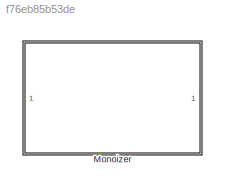
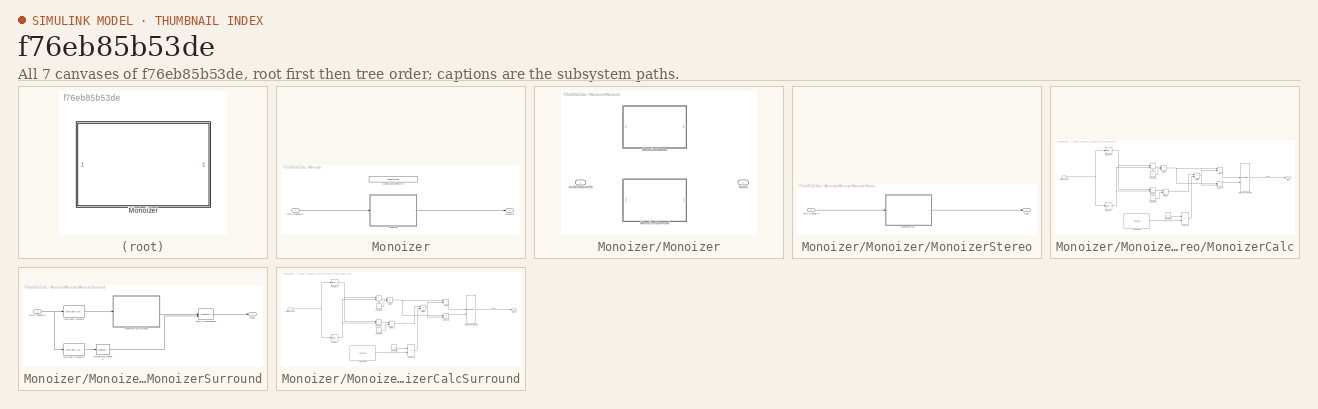
[diagram: thumbnail index - all 7 canvases of the model, root first then tree order]
MODEL slx_f76eb85b53de
KIND library
CONFIG AbsTol = auto
CONFIG EnableMultiTasking = off
CONFIG FixedStep = auto
CONFIG MaxStep = auto
CONFIG MinStep = auto
CONFIG RelTol = 1e-3
CONFIG SampleTimeConstraint = Unconstrained
CONFIG SolverName = VariableStepAuto
CONFIG StartTime = 0.0
CONFIG StopTime = 10.0
BLOCK [SubSystem] Monoizer
BLOCK [Reference] Monoizer/HandyConfigTextFile  REF=HandyTextFile/HandyTextFile
  SourceBlock = HandyTextFile/HandyTextFile
  SourceProductName = Bose Talaria
  SourceType = Talaria Handy Text File
BLOCK [SubSystem] Monoizer/Monoizer
  Variant = on
  VariantControl = Choice
BLOCK [SubSystem] Monoizer/Monoizer/MonoizerStereo
  VariantControl = Config.NumChannels == 2
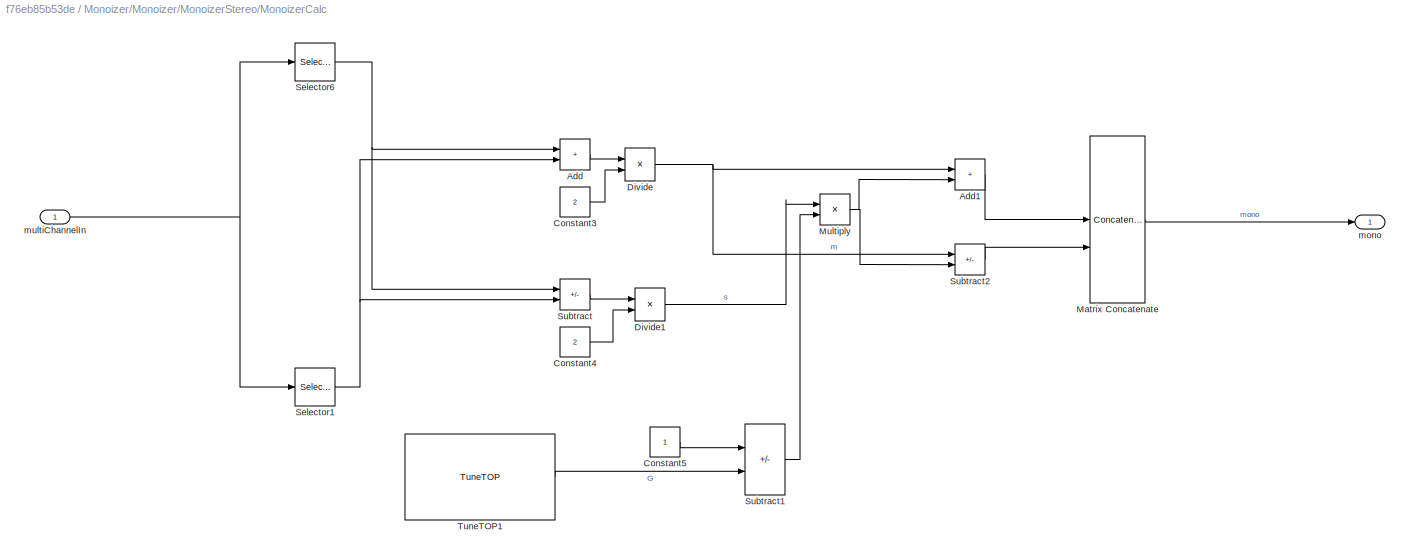
BLOCK [SubSystem] Monoizer/Monoizer/MonoizerStereo/MonoizerCalc
BLOCK [Sum] Monoizer/Monoizer/MonoizerStereo/MonoizerCalc/Add
  IconShape = rectangular
BLOCK [Sum] Monoizer/Monoizer/MonoizerStereo/MonoizerCalc/Add1
  IconShape = rectangular
BLOCK [Constant] Monoizer/Monoizer/MonoizerStereo/MonoizerCalc/Constant3
  OutDataTypeStr = single
  Value = 2
BLOCK [Constant] Monoizer/Monoizer/MonoizerStereo/MonoizerCalc/Constant4
  OutDataTypeStr = single
  Value = 2
BLOCK [Constant] Monoizer/Monoizer/MonoizerStereo/MonoizerCalc/Constant5
  OutDataTypeStr = single
BLOCK [Product] Monoizer/Monoizer/MonoizerStereo/MonoizerCalc/Divide
  Inputs = */
  RndMeth = Zero
  SaturateOnIntegerOverflow = on
BLOCK [Product] Monoizer/Monoizer/MonoizerStereo/MonoizerCalc/Divide1
  Inputs = */
  RndMeth = Zero
  SaturateOnIntegerOverflow = on
BLOCK [Concatenate] Monoizer/Monoizer/MonoizerStereo/MonoizerCalc/Matrix Concatenate
  ConcatenateDimension = 2
  Mode = Multidimensional array
BLOCK [Product] Monoizer/Monoizer/MonoizerStereo/MonoizerCalc/Multiply
BLOCK [Selector] Monoizer/Monoizer/MonoizerStereo/MonoizerCalc/Selector1
  IndexOptions = Select all,Index vector (dialog)
  Indices = 4,2
  InputPortWidth = 3
  NumberOfDimensions = 2
  OutputSizes = 1,1
BLOCK [Selector] Monoizer/Monoizer/MonoizerStereo/MonoizerCalc/Selector6
  IndexOptions = Select all,Index vector (dialog)
  Indices = 4,1
  InputPortWidth = 3
  NumberOfDimensions = 2
  OutputSizes = 1,1
BLOCK [Sum] Monoizer/Monoizer/MonoizerStereo/MonoizerCalc/Subtract
  IconShape = rectangular
  Inputs = +-
BLOCK [Sum] Monoizer/Monoizer/MonoizerStereo/MonoizerCalc/Subtract1
  IconShape = rectangular
  Inputs = +-
BLOCK [Sum] Monoizer/Monoizer/MonoizerStereo/MonoizerCalc/Subtract2
  IconShape = rectangular
  Inputs = +-
BLOCK [Reference] Monoizer/Monoizer/MonoizerStereo/MonoizerCalc/TuneTOP1  REF=TuneVar/TuneTOP
  SourceBlock = TuneVar/TuneTOP
  SourceProductName = Bose Talaria
  SourceType = Talaria Trivial Tune TOP
BLOCK [Outport] Monoizer/Monoizer/MonoizerStereo/MonoizerCalc/mono
BLOCK [Inport] Monoizer/Monoizer/MonoizerStereo/MonoizerCalc/multiChannelIn
BLOCK [Outport] Monoizer/Monoizer/MonoizerStereo/mono
BLOCK [Inport] Monoizer/Monoizer/MonoizerStereo/multiChannelIn
BLOCK [SubSystem] Monoizer/Monoizer/MonoizerSurround
  VariantControl = Config.NumChannels > 2
BLOCK [Concatenate] Monoizer/Monoizer/MonoizerSurround/Matrix Concatenate
  ConcatenateDimension = 2
  Mode = Multidimensional array
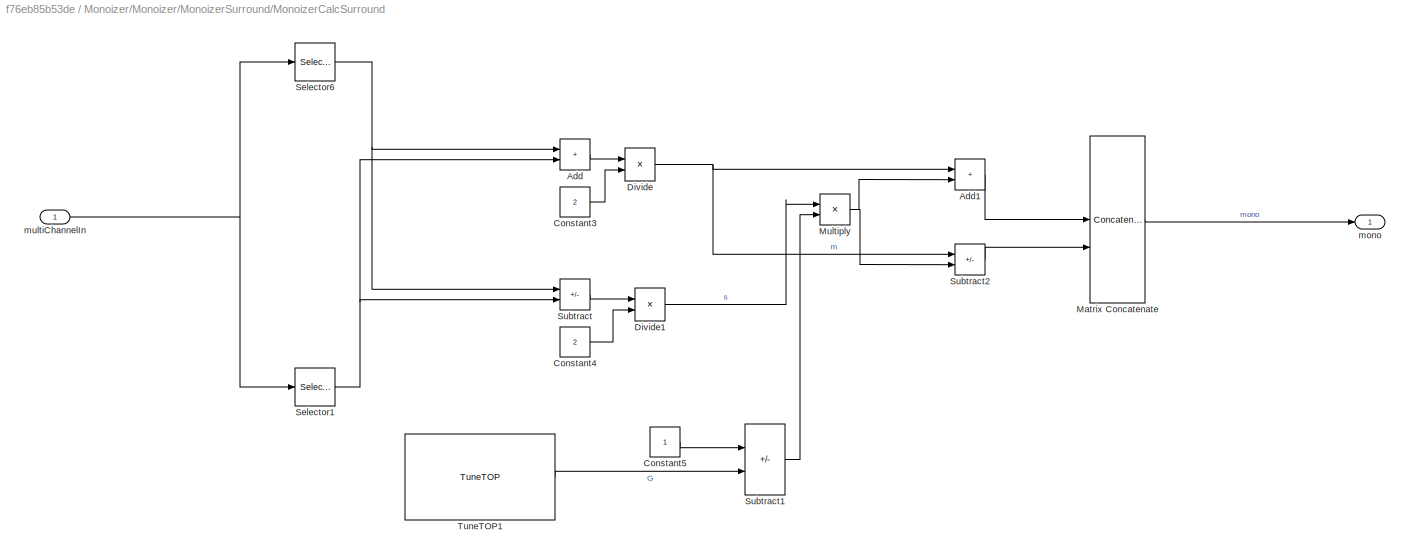
BLOCK [SubSystem] Monoizer/Monoizer/MonoizerSurround/MonoizerCalcSurround
BLOCK [Sum] Monoizer/Monoizer/MonoizerSurround/MonoizerCalcSurround/Add
  IconShape = rectangular
BLOCK [Sum] Monoizer/Monoizer/MonoizerSurround/MonoizerCalcSurround/Add1
  IconShape = rectangular
BLOCK [Constant] Monoizer/Monoizer/MonoizerSurround/MonoizerCalcSurround/Constant3
  OutDataTypeStr = single
  Value = 2
BLOCK [Constant] Monoizer/Monoizer/MonoizerSurround/MonoizerCalcSurround/Constant4
  OutDataTypeStr = single
  Value = 2
BLOCK [Constant] Monoizer/Monoizer/MonoizerSurround/MonoizerCalcSurround/Constant5
  OutDataTypeStr = single
BLOCK [Product] Monoizer/Monoizer/MonoizerSurround/MonoizerCalcSurround/Divide
  Inputs = */
  RndMeth = Zero
  SaturateOnIntegerOverflow = on
BLOCK [Product] Monoizer/Monoizer/MonoizerSurround/MonoizerCalcSurround/Divide1
  Inputs = */
  RndMeth = Zero
  SaturateOnIntegerOverflow = on
BLOCK [Concatenate] Monoizer/Monoizer/MonoizerSurround/MonoizerCalcSurround/Matrix Concatenate
  ConcatenateDimension = 2
  Mode = Multidimensional array
BLOCK [Product] Monoizer/Monoizer/MonoizerSurround/MonoizerCalcSurround/Multiply
BLOCK [Selector] Monoizer/Monoizer/MonoizerSurround/MonoizerCalcSurround/Selector1
  IndexOptions = Select all,Index vector (dialog)
  Indices = 4,2
  InputPortWidth = 3
  NumberOfDimensions = 2
  OutputSizes = 1,1
BLOCK [Selector] Monoizer/Monoizer/MonoizerSurround/MonoizerCalcSurround/Selector6
  IndexOptions = Select all,Index vector (dialog)
  Indices = 4,1
  InputPortWidth = 3
  NumberOfDimensions = 2
  OutputSizes = 1,1
BLOCK [Sum] Monoizer/Monoizer/MonoizerSurround/MonoizerCalcSurround/Subtract
  IconShape = rectangular
  Inputs = +-
BLOCK [Sum] Monoizer/Monoizer/MonoizerSurround/MonoizerCalcSurround/Subtract1
  IconShape = rectangular
  Inputs = +-
BLOCK [Sum] Monoizer/Monoizer/MonoizerSurround/MonoizerCalcSurround/Subtract2
  IconShape = rectangular
  Inputs = +-
BLOCK [Reference] Monoizer/Monoizer/MonoizerSurround/MonoizerCalcSurround/TuneTOP1  REF=TuneVar/TuneTOP
  SourceBlock = TuneVar/TuneTOP
  SourceProductName = Bose Talaria
  SourceType = Talaria Trivial Tune TOP
BLOCK [Outport] Monoizer/Monoizer/MonoizerSurround/MonoizerCalcSurround/mono
BLOCK [Inport] Monoizer/Monoizer/MonoizerSurround/MonoizerCalcSurround/multiChannelIn
BLOCK [Reference] Monoizer/Monoizer/MonoizerSurround/Multiport Selector  REF=dspindex/Multiport
Selector
  LibrarySourceBlock = dsphdlsupportsigmgmt/Multiport\nSelector
  SourceBlock = dspindex/Multiport\nSelector
  SourceType = Multiport Selector
BLOCK [Reference] Monoizer/Monoizer/MonoizerSurround/Multiport Selector1  REF=dspindex/Multiport
Selector
  Commented = through
  LibrarySourceBlock = dsphdlsupportsigmgmt/Multiport\nSelector
  SourceBlock = dspindex/Multiport\nSelector
  SourceType = Multiport Selector
BLOCK [Reference] Monoizer/Monoizer/MonoizerSurround/RemainingChannels  REF=matrix_library/Submatrix
  SourceBlock = matrix_library/Submatrix
  SourceType = Submatrix
BLOCK [Outport] Monoizer/Monoizer/MonoizerSurround/mono
BLOCK [Inport] Monoizer/Monoizer/MonoizerSurround/multiChannelIn
BLOCK [Outport] Monoizer/Monoizer/mono
BLOCK [Inport] Monoizer/Monoizer/multiChannelIn
BLOCK [Outport] Monoizer/monoOut
  VectorParamsAs1DForOutWhenUnconnected = off
BLOCK [Inport] Monoizer/multiChannelIn
LINE Monoizer/Monoizer/MonoizerStereo/MonoizerCalc/Add1:1 -> Monoizer/Monoizer/MonoizerStereo/MonoizerCalc/Matrix Concatenate:1
LINE Monoizer/Monoizer/MonoizerStereo/MonoizerCalc/Add:1 -> Monoizer/Monoizer/MonoizerStereo/MonoizerCalc/Divide:1
LINE Monoizer/Monoizer/MonoizerStereo/MonoizerCalc/Constant3:1 -> Monoizer/Monoizer/MonoizerStereo/MonoizerCalc/Divide:2
LINE Monoizer/Monoizer/MonoizerStereo/MonoizerCalc/Constant4:1 -> Monoizer/Monoizer/MonoizerStereo/MonoizerCalc/Divide1:2
LINE Monoizer/Monoizer/MonoizerStereo/MonoizerCalc/Constant5:1 -> Monoizer/Monoizer/MonoizerStereo/MonoizerCalc/Subtract1:1
LINE Monoizer/Monoizer/MonoizerStereo/MonoizerCalc/Divide1:1 -> Monoizer/Monoizer/MonoizerStereo/MonoizerCalc/Multiply:1
NET Monoizer/Monoizer/MonoizerStereo/MonoizerCalc/Divide:1 -> Monoizer/Monoizer/MonoizerStereo/MonoizerCalc/Add1:1, Monoizer/Monoizer/MonoizerStereo/MonoizerCalc/Subtract2:1
LINE Monoizer/Monoizer/MonoizerStereo/MonoizerCalc/Matrix Concatenate:1 -> Monoizer/Monoizer/MonoizerStereo/MonoizerCalc/mono:1
NET Monoizer/Monoizer/MonoizerStereo/MonoizerCalc/Multiply:1 -> Monoizer/Monoizer/MonoizerStereo/MonoizerCalc/Add1:2, Monoizer/Monoizer/MonoizerStereo/MonoizerCalc/Subtract2:2
NET Monoizer/Monoizer/MonoizerStereo/MonoizerCalc/Selector1:1 -> Monoizer/Monoizer/MonoizerStereo/MonoizerCalc/Add:2, Monoizer/Monoizer/MonoizerStereo/MonoizerCalc/Subtract:2
NET Monoizer/Monoizer/MonoizerStereo/MonoizerCalc/Selector6:1 -> Monoizer/Monoizer/MonoizerStereo/MonoizerCalc/Add:1, Monoizer/Monoizer/MonoizerStereo/MonoizerCalc/Subtract:1
LINE Monoizer/Monoizer/MonoizerStereo/MonoizerCalc/Subtract1:1 -> Monoizer/Monoizer/MonoizerStereo/MonoizerCalc/Multiply:2
LINE Monoizer/Monoizer/MonoizerStereo/MonoizerCalc/Subtract2:1 -> Monoizer/Monoizer/MonoizerStereo/MonoizerCalc/Matrix Concatenate:2
LINE Monoizer/Monoizer/MonoizerStereo/MonoizerCalc/Subtract:1 -> Monoizer/Monoizer/MonoizerStereo/MonoizerCalc/Divide1:1
LINE Monoizer/Monoizer/MonoizerStereo/MonoizerCalc/TuneTOP1:1 -> Monoizer/Monoizer/MonoizerStereo/MonoizerCalc/Subtract1:2
NET Monoizer/Monoizer/MonoizerStereo/MonoizerCalc/multiChannelIn:1 -> Monoizer/Monoizer/MonoizerStereo/MonoizerCalc/Selector1:1, Monoizer/Monoizer/MonoizerStereo/MonoizerCalc/Selector6:1
LINE Monoizer/Monoizer/MonoizerStereo/MonoizerCalc:1 -> Monoizer/Monoizer/MonoizerStereo/mono:1
LINE Monoizer/Monoizer/MonoizerStereo/multiChannelIn:1 -> Monoizer/Monoizer/MonoizerStereo/MonoizerCalc:1
LINE Monoizer/Monoizer/MonoizerSurround/Matrix Concatenate:1 -> Monoizer/Monoizer/MonoizerSurround/mono:1
LINE Monoizer/Monoizer/MonoizerSurround/MonoizerCalcSurround/Add1:1 -> Monoizer/Monoizer/MonoizerSurround/MonoizerCalcSurround/Matrix Concatenate:1
LINE Monoizer/Monoizer/MonoizerSurround/MonoizerCalcSurround/Add:1 -> Monoizer/Monoizer/MonoizerSurround/MonoizerCalcSurround/Divide:1
LINE Monoizer/Monoizer/MonoizerSurround/MonoizerCalcSurround/Constant3:1 -> Monoizer/Monoizer/MonoizerSurround/MonoizerCalcSurround/Divide:2
LINE Monoizer/Monoizer/MonoizerSurround/MonoizerCalcSurround/Constant4:1 -> Monoizer/Monoizer/MonoizerSurround/MonoizerCalcSurround/Divide1:2
LINE Monoizer/Monoizer/MonoizerSurround/MonoizerCalcSurround/Constant5:1 -> Monoizer/Monoizer/MonoizerSurround/MonoizerCalcSurround/Subtract1:1
LINE Monoizer/Monoizer/MonoizerSurround/MonoizerCalcSurround/Divide1:1 -> Monoizer/Monoizer/MonoizerSurround/MonoizerCalcSurround/Multiply:1
NET Monoizer/Monoizer/MonoizerSurround/MonoizerCalcSurround/Divide:1 -> Monoizer/Monoizer/MonoizerSurround/MonoizerCalcSurround/Add1:1, Monoizer/Monoizer/MonoizerSurround/MonoizerCalcSurround/Subtract2:1
LINE Monoizer/Monoizer/MonoizerSurround/MonoizerCalcSurround/Matrix Concatenate:1 -> Monoizer/Monoizer/MonoizerSurround/MonoizerCalcSurround/mono:1
NET Monoizer/Monoizer/MonoizerSurround/MonoizerCalcSurround/Multiply:1 -> Monoizer/Monoizer/MonoizerSurround/MonoizerCalcSurround/Add1:2, Monoizer/Monoizer/MonoizerSurround/MonoizerCalcSurround/Subtract2:2
NET Monoizer/Monoizer/MonoizerSurround/MonoizerCalcSurround/Selector1:1 -> Monoizer/Monoizer/MonoizerSurround/MonoizerCalcSurround/Add:2, Monoizer/Monoizer/MonoizerSurround/MonoizerCalcSurround/Subtract:2
NET Monoizer/Monoizer/MonoizerSurround/MonoizerCalcSurround/Selector6:1 -> Monoizer/Monoizer/MonoizerSurround/MonoizerCalcSurround/Add:1, Monoizer/Monoizer/MonoizerSurround/MonoizerCalcSurround/Subtract:1
LINE Monoizer/Monoizer/MonoizerSurround/MonoizerCalcSurround/Subtract1:1 -> Monoizer/Monoizer/MonoizerSurround/MonoizerCalcSurround/Multiply:2
LINE Monoizer/Monoizer/MonoizerSurround/MonoizerCalcSurround/Subtract2:1 -> Monoizer/Monoizer/MonoizerSurround/MonoizerCalcSurround/Matrix Concatenate:2
LINE Monoizer/Monoizer/MonoizerSurround/MonoizerCalcSurround/Subtract:1 -> Monoizer/Monoizer/MonoizerSurround/MonoizerCalcSurround/Divide1:1
LINE Monoizer/Monoizer/MonoizerSurround/MonoizerCalcSurround/TuneTOP1:1 -> Monoizer/Monoizer/MonoizerSurround/MonoizerCalcSurround/Subtract1:2
NET Monoizer/Monoizer/MonoizerSurround/MonoizerCalcSurround/multiChannelIn:1 -> Monoizer/Monoizer/MonoizerSurround/MonoizerCalcSurround/Selector1:1, Monoizer/Monoizer/MonoizerSurround/MonoizerCalcSurround/Selector6:1
LINE Monoizer/Monoizer/MonoizerSurround/MonoizerCalcSurround:1 -> Monoizer/Monoizer/MonoizerSurround/Matrix Concatenate:1
LINE Monoizer/Monoizer/MonoizerSurround/Multiport Selector1:1 -> Monoizer/Monoizer/MonoizerSurround/RemainingChannels:1
LINE Monoizer/Monoizer/MonoizerSurround/Multiport Selector:1 -> Monoizer/Monoizer/MonoizerSurround/MonoizerCalcSurround:1
LINE Monoizer/Monoizer/MonoizerSurround/RemainingChannels:1 -> Monoizer/Monoizer/MonoizerSurround/Matrix Concatenate:2
NET Monoizer/Monoizer/MonoizerSurround/multiChannelIn:1 -> Monoizer/Monoizer/MonoizerSurround/Multiport Selector1:1, Monoizer/Monoizer/MonoizerSurround/Multiport Selector:1
LINE Monoizer/Monoizer:1 -> Monoizer/monoOut:1
LINE Monoizer/multiChannelIn:1 -> Monoizer/Monoizer:1
note: NET lines group one-source signal fan-out (src -> all destinations, sorted); 1:1 wires keep LINE
